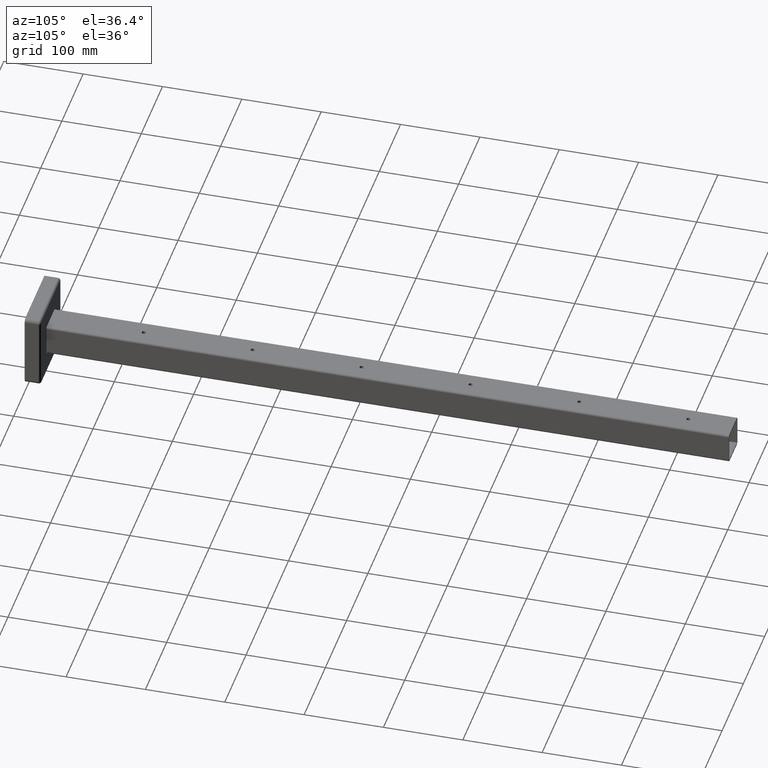
[diagram: clean part render]
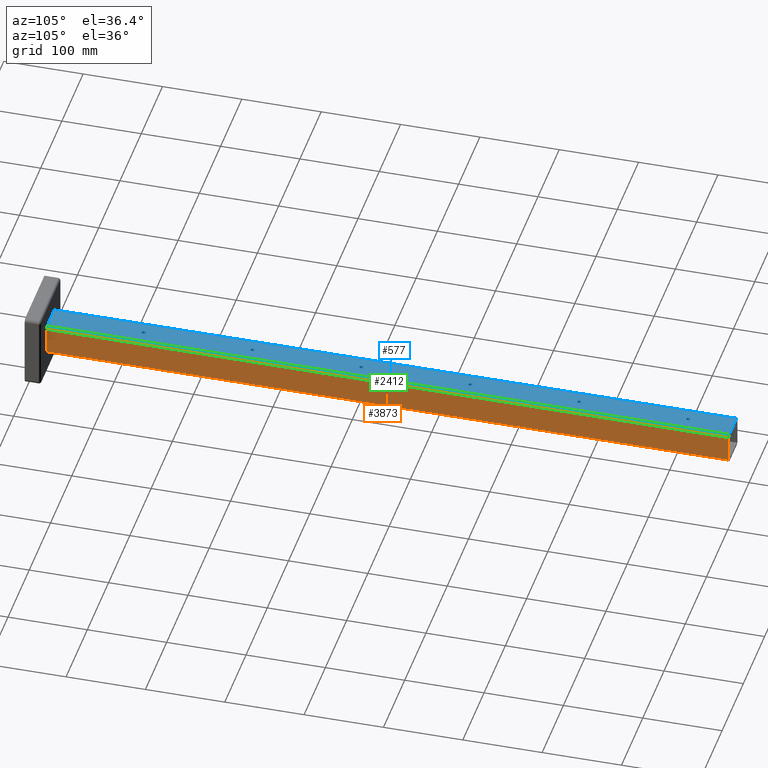
[diagram: same view with three faces highlighted in distinct colors, each labeled with its STEP entity id]
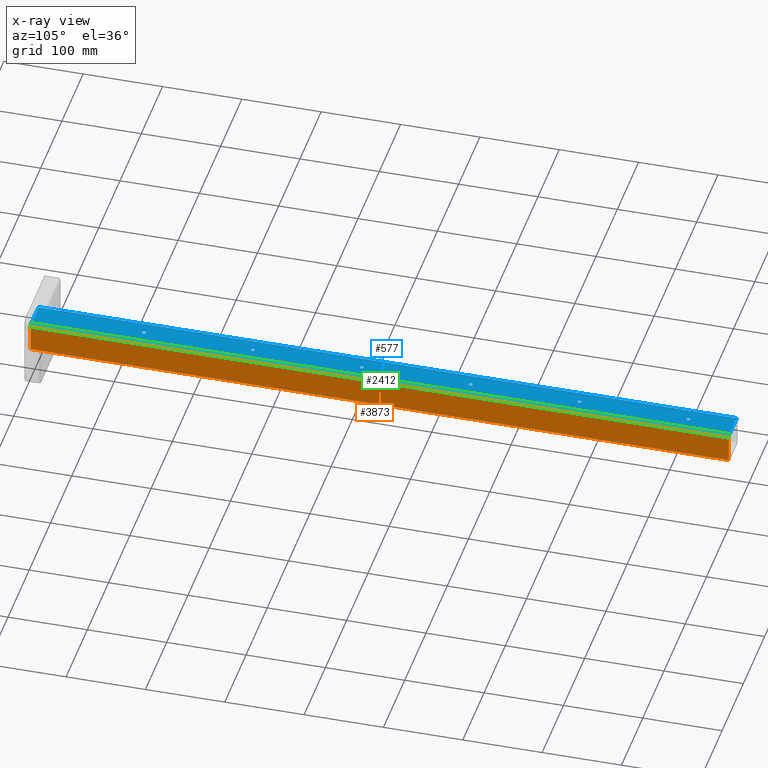
[diagram: x-ray of the same camera — body ghosted, the three highlighted faces saturated]
A machine part, auxiliary view with three faces highlighted in distinct colors.
The next image is the same camera in x-ray (body ghosted, the three faces saturated) — at least one of them is partly hidden behind the body in this view.
Their STEP definitions:

[orange] entity #3873 — the highlighted planar face has unit normal (-1, 0, 0).
#94 = CARTESIAN_POINT ( 'NONE',  ( 19.99999999999999300, 0.0000000000000000000, -17.00000000000000400 ) ) ;
#288 = VERTEX_POINT ( 'NONE', #94 ) ;
#401 = CARTESIAN_POINT ( 'NONE',  ( 19.99999999999999300, 880.0000000000000000, -17.00000000000000400 ) ) ;
#491 = DIRECTION ( 'NONE',  ( -1.000000000000000000, 0.0000000000000000000, 2.602085213965210600E-016 ) ) ;
#671 = LINE ( 'NONE', #1822, #3430 ) ;
#684 = EDGE_CURVE ( 'NONE', #1996, #1120, #1421, .T. ) ;
#789 = DIRECTION ( 'NONE',  ( 2.602085213965210600E-016, 0.0000000000000000000, 1.000000000000000000 ) ) ;
#1043 = ORIENTED_EDGE ( 'NONE', *, *, #2524, .F. ) ;
#1120 = VERTEX_POINT ( 'NONE', #2584 ) ;
#1421 = LINE ( 'NONE', #2705, #2735 ) ;
#1581 = ORIENTED_EDGE ( 'NONE', *, *, #684, .T. ) ;
#1599 = VECTOR ( 'NONE', #3145, 1000.000000000000000 ) ;
#1822 = CARTESIAN_POINT ( 'NONE',  ( 19.99999999999999300, 0.0000000000000000000, -20.00000000000000400 ) ) ;
#1996 = VERTEX_POINT ( 'NONE', #2559 ) ;
#2040 = LINE ( 'NONE', #401, #1599 ) ;
#2144 = DIRECTION ( 'NONE',  ( -2.602085213965210600E-016, -0.0000000000000000000, -1.000000000000000000 ) ) ;
#2457 = EDGE_CURVE ( 'NONE', #1120, #288, #671, .T. ) ;
#2490 = EDGE_LOOP ( 'NONE', ( #3619, #2789, #1043, #1581 ) ) ;
#2515 = DIRECTION ( 'NONE',  ( -2.602085213965210600E-016, -0.0000000000000000000, -1.000000000000000000 ) ) ;
#2524 = EDGE_CURVE ( 'NONE', #1996, #3434, #3629, .T. ) ;
#2559 = CARTESIAN_POINT ( 'NONE',  ( 20.00000000000000400, 880.0000000000000000, 17.00000000000000000 ) ) ;
#2584 = CARTESIAN_POINT ( 'NONE',  ( 20.00000000000000400, 0.0000000000000000000, 17.00000000000000000 ) ) ;
#2625 = EDGE_CURVE ( 'NONE', #288, #3434, #2040, .T. ) ;
#2631 = CARTESIAN_POINT ( 'NONE',  ( 19.99999999999999300, 880.0000000000000000, -20.00000000000000400 ) ) ;
#2705 = CARTESIAN_POINT ( 'NONE',  ( 20.00000000000000400, 880.0000000000000000, 17.00000000000000000 ) ) ;
#2735 = VECTOR ( 'NONE', #3603, 1000.000000000000000 ) ;
#2789 = ORIENTED_EDGE ( 'NONE', *, *, #2625, .T. ) ;
#2836 = CARTESIAN_POINT ( 'NONE',  ( 19.99999999999999300, 880.0000000000000000, -20.00000000000000400 ) ) ;
#2843 = FACE_OUTER_BOUND ( 'NONE', #2490, .T. ) ;
#3060 = AXIS2_PLACEMENT_3D ( 'NONE', #2631, #491, #789 ) ;
#3137 = PLANE ( 'NONE',  #3060 ) ;
#3145 = DIRECTION ( 'NONE',  ( -0.0000000000000000000, 1.000000000000000000, -0.0000000000000000000 ) ) ;
#3430 = VECTOR ( 'NONE', #2144, 1000.000000000000000 ) ;
#3434 = VERTEX_POINT ( 'NONE', #3651 ) ;
#3531 = VECTOR ( 'NONE', #2515, 1000.000000000000000 ) ;
#3603 = DIRECTION ( 'NONE',  ( 0.0000000000000000000, -1.000000000000000000, 0.0000000000000000000 ) ) ;
#3619 = ORIENTED_EDGE ( 'NONE', *, *, #2457, .T. ) ;
#3629 = LINE ( 'NONE', #2836, #3531 ) ;
#3651 = CARTESIAN_POINT ( 'NONE',  ( 19.99999999999999300, 880.0000000000000000, -17.00000000000000400 ) ) ;
#3873 = ADVANCED_FACE ( 'NONE', ( #2843 ), #3137, .F. ) ;

[blue] entity #577 — the highlighted planar face has unit normal (0, 0, -1).
#71 = DIRECTION ( 'NONE',  ( -0.0000000000000000000, -0.0000000000000000000, 1.000000000000000000 ) ) ;
#161 = AXIS2_PLACEMENT_3D ( 'NONE', #780, #467, #1988 ) ;
#163 = DIRECTION ( 'NONE',  ( -0.0000000000000000000, -0.0000000000000000000, 1.000000000000000000 ) ) ;
#177 = CIRCLE ( 'NONE', #1735, 2.500000000000000400 ) ;
#209 = ORIENTED_EDGE ( 'NONE', *, *, #2246, .F. ) ;
#250 = ORIENTED_EDGE ( 'NONE', *, *, #2911, .F. ) ;
#276 = EDGE_CURVE ( 'NONE', #1554, #3658, #3018, .T. ) ;
#290 = EDGE_LOOP ( 'NONE', ( #1649, #1243 ) ) ;
#292 = CARTESIAN_POINT ( 'NONE',  ( 2.803216523248288300E-015, 823.6800000000000600, 19.99999999999999600 ) ) ;
#359 = CARTESIAN_POINT ( 'NONE',  ( -2.499999999999997800, 686.4000000000000900, 19.99999999999999600 ) ) ;
#368 = CARTESIAN_POINT ( 'NONE',  ( -2.499999999999997800, 137.2800000000000000, 19.99999999999999600 ) ) ;
#397 = CIRCLE ( 'NONE', #3323, 2.500000000000000400 ) ;
#403 = EDGE_CURVE ( 'NONE', #3521, #2756, #1379, .T. ) ;
#412 = EDGE_CURVE ( 'NONE', #2756, #3521, #397, .T. ) ;
#467 = DIRECTION ( 'NONE',  ( -0.0000000000000000000, -0.0000000000000000000, 1.000000000000000000 ) ) ;
#486 = DIRECTION ( 'NONE',  ( 1.000000000000000000, 0.0000000000000000000, 0.0000000000000000000 ) ) ;
#490 = CARTESIAN_POINT ( 'NONE',  ( -16.99999999999999600, 880.0000000000000000, 19.99999999999999600 ) ) ;
#560 = ORIENTED_EDGE ( 'NONE', *, *, #2612, .F. ) ;
#577 = ADVANCED_FACE ( 'NONE', ( #1005, #2009, #2588, #1329, #2348, #1957, #3877 ), #1102, .F. ) ;
#593 = EDGE_CURVE ( 'NONE', #2052, #1834, #2054, .T. ) ;
#632 = VECTOR ( 'NONE', #2880, 1000.000000000000000 ) ;
#645 = VECTOR ( 'NONE', #3133, 1000.000000000000000 ) ;
#722 = ORIENTED_EDGE ( 'NONE', *, *, #2255, .F. ) ;
#734 = DIRECTION ( 'NONE',  ( -0.0000000000000000000, -0.0000000000000000000, 1.000000000000000000 ) ) ;
#777 = AXIS2_PLACEMENT_3D ( 'NONE', #3253, #1124, #2370 ) ;
#780 = CARTESIAN_POINT ( 'NONE',  ( 2.803216523248288300E-015, 137.2800000000000000, 19.99999999999999600 ) ) ;
#785 = ORIENTED_EDGE ( 'NONE', *, *, #1769, .F. ) ;
#825 = CARTESIAN_POINT ( 'NONE',  ( -16.99999999999999600, 880.0000000000000000, 19.99999999999999600 ) ) ;
#832 = DIRECTION ( 'NONE',  ( 1.000000000000000000, 0.0000000000000000000, 0.0000000000000000000 ) ) ;
#834 = CARTESIAN_POINT ( 'NONE',  ( -16.99999999999999600, 0.0000000000000000000, 19.99999999999999600 ) ) ;
#851 = DIRECTION ( 'NONE',  ( -1.000000000000000000, 0.0000000000000000000, -0.0000000000000000000 ) ) ;
#861 = AXIS2_PLACEMENT_3D ( 'NONE', #292, #2424, #922 ) ;
#907 = VERTEX_POINT ( 'NONE', #359 ) ;
#911 = ORIENTED_EDGE ( 'NONE', *, *, #2665, .F. ) ;
#922 = DIRECTION ( 'NONE',  ( 1.000000000000000000, 0.0000000000000000000, 0.0000000000000000000 ) ) ;
#934 = DIRECTION ( 'NONE',  ( -0.0000000000000000000, -0.0000000000000000000, 1.000000000000000000 ) ) ;
#954 = LINE ( 'NONE', #490, #632 ) ;
#959 = EDGE_CURVE ( 'NONE', #3249, #2673, #3639, .T. ) ;
#1002 = CARTESIAN_POINT ( 'NONE',  ( 2.803216523248288300E-015, 274.5600000000000000, 19.99999999999999600 ) ) ;
#1005 = FACE_BOUND ( 'NONE', #290, .T. ) ;
#1023 = CARTESIAN_POINT ( 'NONE',  ( 2.500000000000003100, 823.6800000000000600, 19.99999999999999600 ) ) ;
#1079 = DIRECTION ( 'NONE',  ( -0.0000000000000000000, -0.0000000000000000000, 1.000000000000000000 ) ) ;
#1102 = PLANE ( 'NONE',  #1104 ) ;
#1104 = AXIS2_PLACEMENT_3D ( 'NONE', #3867, #3889, #851 ) ;
#1107 = ORIENTED_EDGE ( 'NONE', *, *, #412, .F. ) ;
#1124 = DIRECTION ( 'NONE',  ( -0.0000000000000000000, -0.0000000000000000000, 1.000000000000000000 ) ) ;
#1127 = CARTESIAN_POINT ( 'NONE',  ( 2.500000000000003100, 686.4000000000000900, 19.99999999999999600 ) ) ;
#1194 = CARTESIAN_POINT ( 'NONE',  ( 2.803216523248288300E-015, 686.4000000000000900, 19.99999999999999600 ) ) ;
#1197 = AXIS2_PLACEMENT_3D ( 'NONE', #1670, #163, #2907 ) ;
#1210 = VERTEX_POINT ( 'NONE', #834 ) ;
#1243 = ORIENTED_EDGE ( 'NONE', *, *, #959, .F. ) ;
#1276 = LINE ( 'NONE', #1597, #3200 ) ;
#1291 = DIRECTION ( 'NONE',  ( 1.000000000000000000, 0.0000000000000000000, 0.0000000000000000000 ) ) ;
#1299 = DIRECTION ( 'NONE',  ( 1.000000000000000000, 0.0000000000000000000, 0.0000000000000000000 ) ) ;
#1302 = VERTEX_POINT ( 'NONE', #2823 ) ;
#1318 = CARTESIAN_POINT ( 'NONE',  ( 2.500000000000003100, 549.1200000000000000, 19.99999999999999600 ) ) ;
#1326 = DIRECTION ( 'NONE',  ( -0.0000000000000000000, -0.0000000000000000000, 1.000000000000000000 ) ) ;
#1329 = FACE_BOUND ( 'NONE', #3612, .T. ) ;
#1366 = CARTESIAN_POINT ( 'NONE',  ( 17.00000000000000700, 0.0000000000000000000, 19.99999999999999600 ) ) ;
#1379 = CIRCLE ( 'NONE', #1197, 2.500000000000000400 ) ;
#1397 = ORIENTED_EDGE ( 'NONE', *, *, #1908, .T. ) ;
#1526 = AXIS2_PLACEMENT_3D ( 'NONE', #3424, #934, #3063 ) ;
#1554 = VERTEX_POINT ( 'NONE', #825 ) ;
#1597 = CARTESIAN_POINT ( 'NONE',  ( 17.00000000000000700, 880.0000000000000000, 19.99999999999999600 ) ) ;
#1649 = ORIENTED_EDGE ( 'NONE', *, *, #2397, .F. ) ;
#1670 = CARTESIAN_POINT ( 'NONE',  ( 2.803216523248288300E-015, 411.8400000000000300, 19.99999999999999600 ) ) ;
#1681 = CARTESIAN_POINT ( 'NONE',  ( 2.803216523248288300E-015, 823.6800000000000600, 19.99999999999999600 ) ) ;
#1695 = LINE ( 'NONE', #2859, #3144 ) ;
#1735 = AXIS2_PLACEMENT_3D ( 'NONE', #1681, #3199, #3840 ) ;
#1757 = EDGE_CURVE ( 'NONE', #2761, #3658, #1276, .T. ) ;
#1769 = EDGE_CURVE ( 'NONE', #907, #2029, #3631, .T. ) ;
#1794 = ORIENTED_EDGE ( 'NONE', *, *, #593, .F. ) ;
#1806 = CARTESIAN_POINT ( 'NONE',  ( 2.803216523248288300E-015, 549.1200000000000000, 19.99999999999999600 ) ) ;
#1834 = VERTEX_POINT ( 'NONE', #1318 ) ;
#1845 = CIRCLE ( 'NONE', #861, 2.500000000000000400 ) ;
#1861 = ORIENTED_EDGE ( 'NONE', *, *, #2570, .T. ) ;
#1864 = VERTEX_POINT ( 'NONE', #368 ) ;
#1899 = CARTESIAN_POINT ( 'NONE',  ( 2.803216523248288300E-015, 686.4000000000000900, 19.99999999999999600 ) ) ;
#1908 = EDGE_CURVE ( 'NONE', #1554, #1210, #954, .T. ) ;
#1957 = FACE_BOUND ( 'NONE', #3322, .T. ) ;
#1988 = DIRECTION ( 'NONE',  ( 1.000000000000000000, 0.0000000000000000000, 0.0000000000000000000 ) ) ;
#1998 = AXIS2_PLACEMENT_3D ( 'NONE', #1002, #1326, #1299 ) ;
#2009 = FACE_BOUND ( 'NONE', #3482, .T. ) ;
#2029 = VERTEX_POINT ( 'NONE', #1127 ) ;
#2052 = VERTEX_POINT ( 'NONE', #3579 ) ;
#2054 = CIRCLE ( 'NONE', #777, 2.500000000000000400 ) ;
#2056 = AXIS2_PLACEMENT_3D ( 'NONE', #1806, #3947, #2115 ) ;
#2083 = DIRECTION ( 'NONE',  ( -0.0000000000000000000, -0.0000000000000000000, 1.000000000000000000 ) ) ;
#2115 = DIRECTION ( 'NONE',  ( 1.000000000000000000, 0.0000000000000000000, 0.0000000000000000000 ) ) ;
#2246 = EDGE_CURVE ( 'NONE', #2029, #907, #3480, .T. ) ;
#2255 = EDGE_CURVE ( 'NONE', #2794, #1302, #1845, .T. ) ;
#2287 = CARTESIAN_POINT ( 'NONE',  ( -2.499999999999997800, 274.5600000000000000, 19.99999999999999600 ) ) ;
#2348 = FACE_BOUND ( 'NONE', #3940, .T. ) ;
#2370 = DIRECTION ( 'NONE',  ( 1.000000000000000000, 0.0000000000000000000, 0.0000000000000000000 ) ) ;
#2380 = ORIENTED_EDGE ( 'NONE', *, *, #1757, .T. ) ;
#2397 = EDGE_CURVE ( 'NONE', #2673, #3249, #3240, .T. ) ;
#2424 = DIRECTION ( 'NONE',  ( -0.0000000000000000000, -0.0000000000000000000, 1.000000000000000000 ) ) ;
#2450 = ORIENTED_EDGE ( 'NONE', *, *, #403, .F. ) ;
#2460 = ORIENTED_EDGE ( 'NONE', *, *, #276, .F. ) ;
#2470 = CARTESIAN_POINT ( 'NONE',  ( 17.00000000000000700, 880.0000000000000000, 19.99999999999999600 ) ) ;
#2494 = DIRECTION ( 'NONE',  ( -0.0000000000000000000, 1.000000000000000000, -0.0000000000000000000 ) ) ;
#2570 = EDGE_CURVE ( 'NONE', #1210, #2761, #1695, .T. ) ;
#2588 = FACE_OUTER_BOUND ( 'NONE', #2648, .T. ) ;
#2612 = EDGE_CURVE ( 'NONE', #1864, #3607, #2622, .T. ) ;
#2622 = CIRCLE ( 'NONE', #161, 2.500000000000000400 ) ;
#2648 = EDGE_LOOP ( 'NONE', ( #2460, #1397, #1861, #2380 ) ) ;
#2662 = CARTESIAN_POINT ( 'NONE',  ( 2.803216523248288300E-015, 137.2800000000000000, 19.99999999999999600 ) ) ;
#2665 = EDGE_CURVE ( 'NONE', #1302, #2794, #177, .T. ) ;
#2673 = VERTEX_POINT ( 'NONE', #3502 ) ;
#2728 = AXIS2_PLACEMENT_3D ( 'NONE', #1899, #71, #3123 ) ;
#2756 = VERTEX_POINT ( 'NONE', #3207 ) ;
#2761 = VERTEX_POINT ( 'NONE', #1366 ) ;
#2794 = VERTEX_POINT ( 'NONE', #1023 ) ;
#2823 = CARTESIAN_POINT ( 'NONE',  ( -2.499999999999997800, 823.6800000000000600, 19.99999999999999600 ) ) ;
#2856 = ORIENTED_EDGE ( 'NONE', *, *, #3421, .F. ) ;
#2859 = CARTESIAN_POINT ( 'NONE',  ( -19.99999999999999600, 0.0000000000000000000, 19.99999999999999600 ) ) ;
#2880 = DIRECTION ( 'NONE',  ( 0.0000000000000000000, -1.000000000000000000, 0.0000000000000000000 ) ) ;
#2907 = DIRECTION ( 'NONE',  ( 1.000000000000000000, 0.0000000000000000000, 0.0000000000000000000 ) ) ;
#2911 = EDGE_CURVE ( 'NONE', #3607, #1864, #3906, .T. ) ;
#3018 = LINE ( 'NONE', #3713, #645 ) ;
#3055 = AXIS2_PLACEMENT_3D ( 'NONE', #2662, #1079, #832 ) ;
#3063 = DIRECTION ( 'NONE',  ( 1.000000000000000000, 0.0000000000000000000, 0.0000000000000000000 ) ) ;
#3123 = DIRECTION ( 'NONE',  ( 1.000000000000000000, 0.0000000000000000000, 0.0000000000000000000 ) ) ;
#3133 = DIRECTION ( 'NONE',  ( 1.000000000000000000, 0.0000000000000000000, 0.0000000000000000000 ) ) ;
#3144 = VECTOR ( 'NONE', #1291, 1000.000000000000000 ) ;
#3199 = DIRECTION ( 'NONE',  ( -0.0000000000000000000, -0.0000000000000000000, 1.000000000000000000 ) ) ;
#3200 = VECTOR ( 'NONE', #2494, 1000.000000000000000 ) ;
#3207 = CARTESIAN_POINT ( 'NONE',  ( -2.499999999999997800, 411.8400000000000300, 19.99999999999999600 ) ) ;
#3240 = CIRCLE ( 'NONE', #1526, 2.500000000000000400 ) ;
#3249 = VERTEX_POINT ( 'NONE', #2287 ) ;
#3253 = CARTESIAN_POINT ( 'NONE',  ( 2.803216523248288300E-015, 549.1200000000000000, 19.99999999999999600 ) ) ;
#3278 = CIRCLE ( 'NONE', #2056, 2.500000000000000400 ) ;
#3322 = EDGE_LOOP ( 'NONE', ( #209, #785 ) ) ;
#3323 = AXIS2_PLACEMENT_3D ( 'NONE', #3831, #734, #486 ) ;
#3390 = CARTESIAN_POINT ( 'NONE',  ( 2.500000000000003100, 411.8400000000000300, 19.99999999999999600 ) ) ;
#3421 = EDGE_CURVE ( 'NONE', #1834, #2052, #3278, .T. ) ;
#3424 = CARTESIAN_POINT ( 'NONE',  ( 2.803216523248288300E-015, 274.5600000000000000, 19.99999999999999600 ) ) ;
#3480 = CIRCLE ( 'NONE', #3729, 2.500000000000000400 ) ;
#3482 = EDGE_LOOP ( 'NONE', ( #250, #560 ) ) ;
#3502 = CARTESIAN_POINT ( 'NONE',  ( 2.500000000000003100, 274.5600000000000000, 19.99999999999999600 ) ) ;
#3521 = VERTEX_POINT ( 'NONE', #3390 ) ;
#3579 = CARTESIAN_POINT ( 'NONE',  ( -2.499999999999997800, 549.1200000000000000, 19.99999999999999600 ) ) ;
#3607 = VERTEX_POINT ( 'NONE', #3960 ) ;
#3612 = EDGE_LOOP ( 'NONE', ( #2450, #1107 ) ) ;
#3631 = CIRCLE ( 'NONE', #2728, 2.500000000000000400 ) ;
#3639 = CIRCLE ( 'NONE', #1998, 2.500000000000000400 ) ;
#3655 = DIRECTION ( 'NONE',  ( 1.000000000000000000, 0.0000000000000000000, 0.0000000000000000000 ) ) ;
#3658 = VERTEX_POINT ( 'NONE', #2470 ) ;
#3713 = CARTESIAN_POINT ( 'NONE',  ( -19.99999999999999600, 880.0000000000000000, 19.99999999999999600 ) ) ;
#3729 = AXIS2_PLACEMENT_3D ( 'NONE', #1194, #2083, #3655 ) ;
#3831 = CARTESIAN_POINT ( 'NONE',  ( 2.803216523248288300E-015, 411.8400000000000300, 19.99999999999999600 ) ) ;
#3840 = DIRECTION ( 'NONE',  ( 1.000000000000000000, 0.0000000000000000000, 0.0000000000000000000 ) ) ;
#3846 = EDGE_LOOP ( 'NONE', ( #722, #911 ) ) ;
#3867 = CARTESIAN_POINT ( 'NONE',  ( -19.99999999999999600, 880.0000000000000000, 19.99999999999999600 ) ) ;
#3877 = FACE_BOUND ( 'NONE', #3846, .T. ) ;
#3889 = DIRECTION ( 'NONE',  ( 0.0000000000000000000, 0.0000000000000000000, -1.000000000000000000 ) ) ;
#3906 = CIRCLE ( 'NONE', #3055, 2.500000000000000400 ) ;
#3940 = EDGE_LOOP ( 'NONE', ( #2856, #1794 ) ) ;
#3947 = DIRECTION ( 'NONE',  ( -0.0000000000000000000, -0.0000000000000000000, 1.000000000000000000 ) ) ;
#3960 = CARTESIAN_POINT ( 'NONE',  ( 2.500000000000003100, 137.2800000000000000, 19.99999999999999600 ) ) ;

[green] entity #2412 — the highlighted cylindrical surface (edge-blend (fillet) strip) has radius 3 mm, axis along (0, -1, 0).
#115 = CIRCLE ( 'NONE', #3904, 2.999999999999999100 ) ;
#316 = EDGE_LOOP ( 'NONE', ( #1804, #2942, #2201, #442 ) ) ;
#442 = ORIENTED_EDGE ( 'NONE', *, *, #684, .F. ) ;
#535 = AXIS2_PLACEMENT_3D ( 'NONE', #1271, #1963, #2604 ) ;
#635 = CARTESIAN_POINT ( 'NONE',  ( 17.00000000000000400, 880.0000000000000000, 17.00000000000000000 ) ) ;
#684 = EDGE_CURVE ( 'NONE', #1996, #1120, #1421, .T. ) ;
#886 = DIRECTION ( 'NONE',  ( -0.0000000000000000000, -1.000000000000000000, -0.0000000000000000000 ) ) ;
#1120 = VERTEX_POINT ( 'NONE', #2584 ) ;
#1212 = DIRECTION ( 'NONE',  ( -1.156482317317871700E-015, 0.0000000000000000000, 1.000000000000000000 ) ) ;
#1271 = CARTESIAN_POINT ( 'NONE',  ( 17.00000000000000400, 880.0000000000000000, 17.00000000000000000 ) ) ;
#1276 = LINE ( 'NONE', #1597, #3200 ) ;
#1366 = CARTESIAN_POINT ( 'NONE',  ( 17.00000000000000700, 0.0000000000000000000, 19.99999999999999600 ) ) ;
#1421 = LINE ( 'NONE', #2705, #2735 ) ;
#1597 = CARTESIAN_POINT ( 'NONE',  ( 17.00000000000000700, 880.0000000000000000, 19.99999999999999600 ) ) ;
#1757 = EDGE_CURVE ( 'NONE', #2761, #3658, #1276, .T. ) ;
#1804 = ORIENTED_EDGE ( 'NONE', *, *, #3859, .F. ) ;
#1963 = DIRECTION ( 'NONE',  ( 0.0000000000000000000, 1.000000000000000000, 0.0000000000000000000 ) ) ;
#1996 = VERTEX_POINT ( 'NONE', #2559 ) ;
#2086 = CYLINDRICAL_SURFACE ( 'NONE', #2365, 2.999999999999999100 ) ;
#2201 = ORIENTED_EDGE ( 'NONE', *, *, #3426, .F. ) ;
#2283 = FACE_OUTER_BOUND ( 'NONE', #316, .T. ) ;
#2365 = AXIS2_PLACEMENT_3D ( 'NONE', #635, #3072, #3372 ) ;
#2412 = ADVANCED_FACE ( 'NONE', ( #2283 ), #2086, .T. ) ;
#2470 = CARTESIAN_POINT ( 'NONE',  ( 17.00000000000000700, 880.0000000000000000, 19.99999999999999600 ) ) ;
#2494 = DIRECTION ( 'NONE',  ( -0.0000000000000000000, 1.000000000000000000, -0.0000000000000000000 ) ) ;
#2559 = CARTESIAN_POINT ( 'NONE',  ( 20.00000000000000400, 880.0000000000000000, 17.00000000000000000 ) ) ;
#2584 = CARTESIAN_POINT ( 'NONE',  ( 20.00000000000000400, 0.0000000000000000000, 17.00000000000000000 ) ) ;
#2604 = DIRECTION ( 'NONE',  ( 0.0000000000000000000, 0.0000000000000000000, 1.000000000000000000 ) ) ;
#2705 = CARTESIAN_POINT ( 'NONE',  ( 20.00000000000000400, 880.0000000000000000, 17.00000000000000000 ) ) ;
#2735 = VECTOR ( 'NONE', #3603, 1000.000000000000000 ) ;
#2761 = VERTEX_POINT ( 'NONE', #1366 ) ;
#2942 = ORIENTED_EDGE ( 'NONE', *, *, #1757, .F. ) ;
#3072 = DIRECTION ( 'NONE',  ( 0.0000000000000000000, -1.000000000000000000, 0.0000000000000000000 ) ) ;
#3200 = VECTOR ( 'NONE', #2494, 1000.000000000000000 ) ;
#3372 = DIRECTION ( 'NONE',  ( 0.0000000000000000000, 0.0000000000000000000, -1.000000000000000000 ) ) ;
#3426 = EDGE_CURVE ( 'NONE', #1120, #2761, #115, .T. ) ;
#3603 = DIRECTION ( 'NONE',  ( 0.0000000000000000000, -1.000000000000000000, 0.0000000000000000000 ) ) ;
#3658 = VERTEX_POINT ( 'NONE', #2470 ) ;
#3678 = CARTESIAN_POINT ( 'NONE',  ( 17.00000000000000400, 0.0000000000000000000, 17.00000000000000000 ) ) ;
#3849 = CIRCLE ( 'NONE', #535, 2.999999999999999100 ) ;
#3859 = EDGE_CURVE ( 'NONE', #3658, #1996, #3849, .T. ) ;
#3904 = AXIS2_PLACEMENT_3D ( 'NONE', #3678, #886, #1212 ) ;